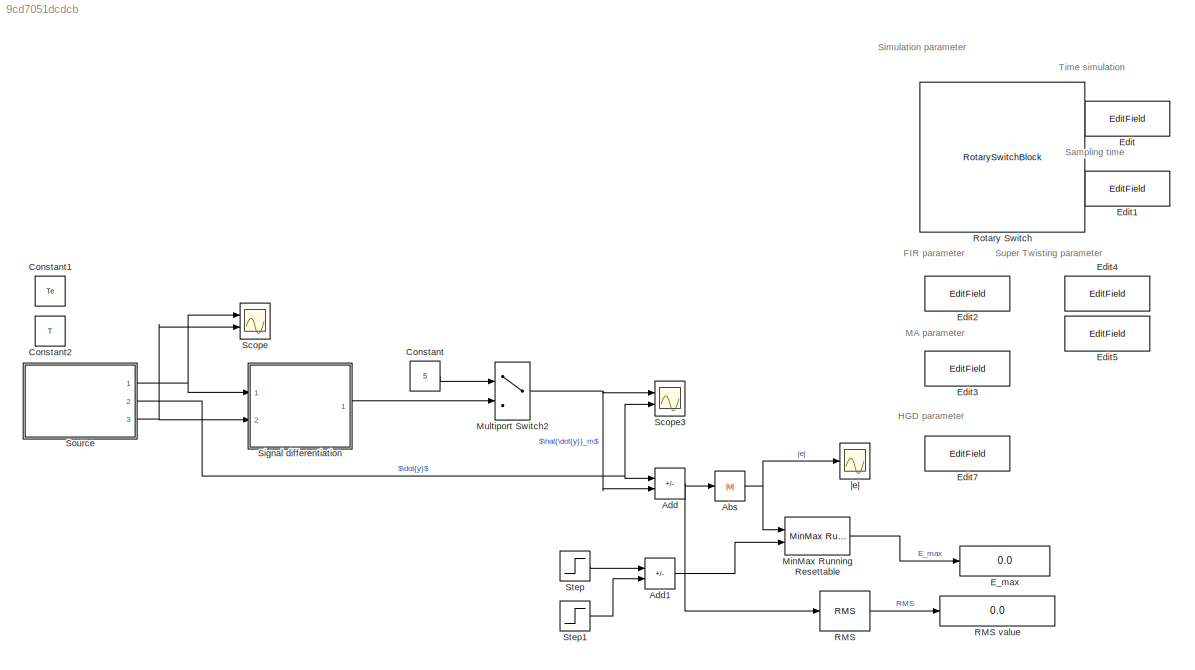
MODEL slx_9cd7051dcdcb
KIND model
CONFIG AbsTol = auto
CONFIG EnableMultiTasking = off
CONFIG FixedStep = auto
CONFIG MaxStep = auto
CONFIG MinStep = auto
CONFIG RelTol = 1e-3
CONFIG SampleTimeConstraint = Unconstrained
CONFIG SolverName = VariableStepAuto
CONFIG StartTime = 0.0
CONFIG StopTime = T
BLOCK [Abs] Abs
  SaturateOnIntegerOverflow = off
  ZeroCross = off
BLOCK [Sum] Add
  IconShape = rectangular
  Inputs = +-
  Ports = [2, 1]
BLOCK [Sum] Add1
  IconShape = rectangular
  Inputs = +-
  Ports = [2, 1]
BLOCK [Constant] Constant
  Value = 5
BLOCK [Constant] Constant1
  Value = Te
BLOCK [Constant] Constant2
  Value = T
BLOCK [Display] E_max
  Decimation = 1
  Ports = [1]
BLOCK [EditField] Edit
  Alignment = Left
  ShowInitialText = on
BLOCK [EditField] Edit1
  Alignment = Left
  ShowInitialText = on
BLOCK [EditField] Edit2
  Alignment = Left
  ShowInitialText = on
BLOCK [EditField] Edit3
  Alignment = Left
  ShowInitialText = on
BLOCK [EditField] Edit4
  Alignment = Left
  ShowInitialText = on
BLOCK [EditField] Edit5
  Alignment = Left
  ShowInitialText = on
BLOCK [EditField] Edit7
  Alignment = Left
  ShowInitialText = on
BLOCK [Reference] MinMax Running Resettable  REF=simulink/Math
Operations/MinMax
Running
Resettable
  Ports = [2, 1]
  SourceBlock = simulink/Math\nOperations/MinMax\nRunning\nResettable
  SourceProductBaseCode = SL
  SourceType = MinMax Running Resettable
BLOCK [MultiPortSwitch] Multiport Switch2
  InputSameDT = off
  Inputs = 1
  Ports = [2, 1]
  SaturateOnIntegerOverflow = off
BLOCK [Reference] RMS  REF=powerlib_meascontrol/Measurements/RMS
  Ports = [1, 1]
  SourceBlock = powerlib_meascontrol/Measurements/RMS
  SourceProductBaseCode = PS
  SourceType = RMS
BLOCK [Display] RMS value
  Decimation = 1
  Format = long
  Ports = [1]
BLOCK [RotarySwitchBlock] Rotary Switch
BLOCK [Scope] Scope
  Floating = off
  NumInputPorts = 2
  Ports = [2]
  ScopeSpecificationString = Simulink.scopes.TimeScopeBlockCfg('CurrentConfiguration', extmgr.ConfigurationSet(extmgr.Configuration('Core','General UI',true),extmgr.Configuration('Core','Source UI',true),extmgr.Configuration('Sources','WiredSimulink',true,'SampleTime','Te'),extmgr.Configuration('Visuals','Time Domain',true,'SerializedDisplays',{struct('MinYLimReal','-6.25087','MaxYLimReal','6.2501','YLabelReal','','MinYLimMag...<+1428ch>
BLOCK [Scope] Scope3
  Floating = off
  NumInputPorts = 2
  Ports = [2]
  ScopeSpecificationString = Simulink.scopes.TimeScopeBlockCfg('CurrentConfiguration', extmgr.ConfigurationSet(extmgr.Configuration('Core','General UI',true,'FigureColor',[1 1 1]),extmgr.Configuration('Core','Source UI',true),extmgr.Configuration('Sources','WiredSimulink',true,'DataLoggingVariableName','ScopeData1','SampleTime','Te'),extmgr.Configuration('Visuals','Time Domain',true,'SerializedDisplays',{struct('MinYLimReal',...<+1788ch>
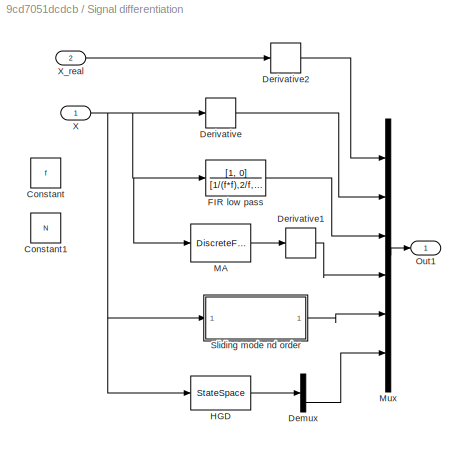
BLOCK [SubSystem] Signal differentiation
  Ports = [2, 1]
  RequestExecContextInheritance = off
BLOCK [Constant] Signal differentiation/Constant
  Value = f
BLOCK [Constant] Signal differentiation/Constant1
  Value = N
BLOCK [Demux] Signal differentiation/Demux
  Outputs = 3
  Ports = [1, 3]
BLOCK [Derivative] Signal differentiation/Derivative
  CoefficientInTFapproximation = 0
BLOCK [Derivative] Signal differentiation/Derivative1
  CoefficientInTFapproximation = 0
BLOCK [Derivative] Signal differentiation/Derivative2
  CoefficientInTFapproximation = 0
BLOCK [TransferFcn] Signal differentiation/FIR low pass
  Denominator = [1/(f*f),2/f, 1]
  Numerator = [1, 0]
BLOCK [StateSpace] Signal differentiation/HGD
  A = sys_obs.A
  B = sys_obs.B
  C = sys_obs.C
  D = sys_obs.D
  InitialCondition = 0
  Ports = [1, 1]
BLOCK [DiscreteFir] Signal differentiation/MA
  Coefficients = 1/floor(N)*ones(1,floor(N))
  InputPortMap = u0
  OutputPortMap = o0
  Ports = [1, 1]
  SampleTime = Te
BLOCK [Mux] Signal differentiation/Mux
  DisplayOption = bar
  Inputs = 6
  Ports = [6, 1]
BLOCK [Outport] Signal differentiation/Out1
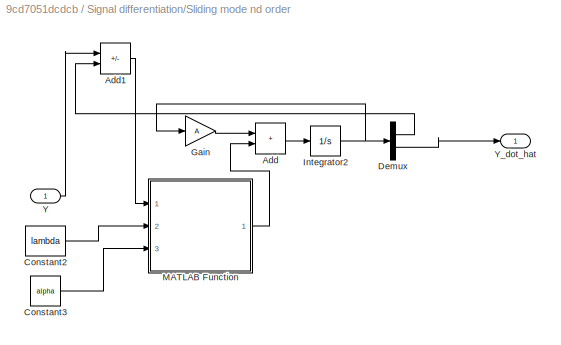
BLOCK [SubSystem] Signal differentiation/Sliding mode nd order
  Ports = [1, 1]
  RequestExecContextInheritance = off
BLOCK [Sum] Signal differentiation/Sliding mode nd order/Add
  IconShape = rectangular
  Ports = [2, 1]
BLOCK [Sum] Signal differentiation/Sliding mode nd order/Add1
  IconShape = rectangular
  Inputs = +-
  Ports = [2, 1]
BLOCK [Constant] Signal differentiation/Sliding mode nd order/Constant2
  Value = lambda
BLOCK [Constant] Signal differentiation/Sliding mode nd order/Constant3
  Value = alpha
BLOCK [Demux] Signal differentiation/Sliding mode nd order/Demux
  Outputs = 2
  Ports = [1, 2]
BLOCK [Gain] Signal differentiation/Sliding mode nd order/Gain
  Gain = A
  Multiplication = Matrix(K*u)
BLOCK [Integrator] Signal differentiation/Sliding mode nd order/Integrator2
  Ports = [1, 1]
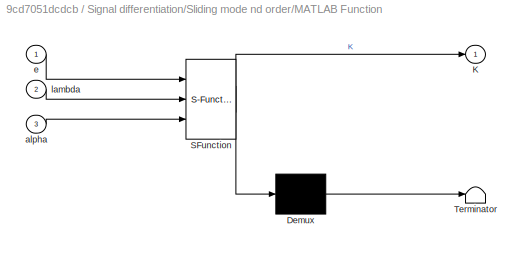
BLOCK [SubSystem] Signal differentiation/Sliding mode nd order/MATLAB Function
  ErrorFcn = Stateflow.Translate.translate
  PermitHierarchicalResolution = ExplicitOnly
  Ports = [3, 1]
  RequestExecContextInheritance = off
  SFBlockType = MATLAB Function
  TreatAsAtomicUnit = on
BLOCK [Demux] Signal differentiation/Sliding mode nd order/MATLAB Function/ Demux 
  Outputs = 1
  Ports = [1, 1]
BLOCK [S-Function] Signal differentiation/Sliding mode nd order/MATLAB Function/ SFunction 
  EnableBusSupport = on
  FunctionName = sf_sfun
  PortCounts = [3 2]
  Ports = [3, 2]
  SFcnIsStateOwnerBlock = off
  SFunctionDeploymentMode = off
  Tag = Stateflow S-Function 2
BLOCK [Terminator] Signal differentiation/Sliding mode nd order/MATLAB Function/ Terminator 
BLOCK [Outport] Signal differentiation/Sliding mode nd order/MATLAB Function/K
BLOCK [Inport] Signal differentiation/Sliding mode nd order/MATLAB Function/alpha
  Port = 3
BLOCK [Inport] Signal differentiation/Sliding mode nd order/MATLAB Function/e
BLOCK [Inport] Signal differentiation/Sliding mode nd order/MATLAB Function/lambda
  Port = 2
BLOCK [Inport] Signal differentiation/Sliding mode nd order/Y
BLOCK [Outport] Signal differentiation/Sliding mode nd order/Y_dot_hat
BLOCK [Inport] Signal differentiation/X
BLOCK [Inport] Signal differentiation/X_real
  Port = 2
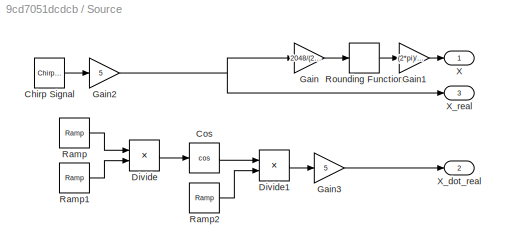
BLOCK [SubSystem] Source
  Ports = [0, 3]
  RequestExecContextInheritance = off
BLOCK [Reference] Source/Chirp Signal  REF=simulink/Sources/Chirp Signal
  Ports = [0, 1]
  SourceBlock = simulink/Sources/Chirp Signal
  SourceProductBaseCode = SL
  SourceType = chirp
BLOCK [Trigonometry] Source/Cos
  Operator = cos
  Ports = [1, 1]
BLOCK [Product] Source/Divide
  Inputs = **
  Ports = [2, 1]
BLOCK [Product] Source/Divide1
  Inputs = **
  Ports = [2, 1]
BLOCK [Gain] Source/Gain
  Gain = 2048/(2*pi)
BLOCK [Gain] Source/Gain1
  Gain = (2*pi)/2048
BLOCK [Gain] Source/Gain2
  Gain = 5
BLOCK [Gain] Source/Gain3
  Gain = 5
BLOCK [Reference] Source/Ramp  REF=simulink/Sources/Ramp
  Ports = [0, 1]
  SourceBlock = simulink/Sources/Ramp
  SourceProductBaseCode = SL
  SourceType = Ramp
BLOCK [Reference] Source/Ramp1  REF=simulink/Sources/Ramp
  Ports = [0, 1]
  SourceBlock = simulink/Sources/Ramp
  SourceProductBaseCode = SL
  SourceType = Ramp
BLOCK [Reference] Source/Ramp2  REF=simulink/Sources/Ramp
  Ports = [0, 1]
  SourceBlock = simulink/Sources/Ramp
  SourceProductBaseCode = SL
  SourceType = Ramp
BLOCK [Rounding] Source/Rounding Function
BLOCK [Outport] Source/X
BLOCK [Outport] Source/X_dot_real
  Port = 2
BLOCK [Outport] Source/X_real
  Port = 3
BLOCK [Step] Step
  SampleTime = 0
  Time = 0
BLOCK [Step] Step1
  SampleTime = 0
  Time = 0.5
BLOCK [Scope] |e|
  Floating = off
  NumInputPorts = 1
  Ports = [1]
  ScopeSpecificationString = Simulink.scopes.TimeScopeBlockCfg('CurrentConfiguration', extmgr.ConfigurationSet(extmgr.Configuration('Core','General UI',true,'FigureColor',[1 1 1]),extmgr.Configuration('Core','Source UI',true),extmgr.Configuration('Sources','WiredSimulink',true,'DataLoggingVariableName','ScopeData1','SampleTime','Te'),extmgr.Configuration('Visuals','Time Domain',true,'SerializedDisplays',{struct('MinYLimReal',...<+1767ch>
ANNOTATION (root): Sampling time
ANNOTATION (root): Simulation parameter
ANNOTATION (root): Time simulation
ANNOTATION (root): FIR parameter
ANNOTATION (root): HGD parameter
ANNOTATION (root): MA parameter
ANNOTATION (root): Super Twisting parameter
NET Abs:1 -> MinMax Running Resettable:1, |e|:1
LINE Add1:1 -> MinMax Running Resettable:2
NET Add:1 -> Abs:1, RMS:1
LINE Constant:1 -> Multiport Switch2:1
LINE MinMax Running Resettable:1 -> E_max:1
NET Multiport Switch2:1 -> Add:2, Scope3:1
LINE RMS:1 -> RMS value:1
LINE Signal differentiation/Demux:3 -> Signal differentiation/Mux:6
LINE Signal differentiation/Derivative1:1 -> Signal differentiation/Mux:4
LINE Signal differentiation/Derivative2:1 -> Signal differentiation/Mux:1
LINE Signal differentiation/Derivative:1 -> Signal differentiation/Mux:2
LINE Signal differentiation/FIR low pass:1 -> Signal differentiation/Mux:3
LINE Signal differentiation/HGD:1 -> Signal differentiation/Demux:1
LINE Signal differentiation/MA:1 -> Signal differentiation/Derivative1:1
LINE Signal differentiation/Mux:1 -> Signal differentiation/Out1:1
LINE Signal differentiation/Sliding mode nd order/Add1:1 -> Signal differentiation/Sliding mode nd order/MATLAB Function:1
LINE Signal differentiation/Sliding mode nd order/Add:1 -> Signal differentiation/Sliding mode nd order/Integrator2:1
LINE Signal differentiation/Sliding mode nd order/Constant2:1 -> Signal differentiation/Sliding mode nd order/MATLAB Function:2
LINE Signal differentiation/Sliding mode nd order/Constant3:1 -> Signal differentiation/Sliding mode nd order/MATLAB Function:3
LINE Signal differentiation/Sliding mode nd order/Demux:1 -> Signal differentiation/Sliding mode nd order/Add1:2
LINE Signal differentiation/Sliding mode nd order/Demux:2 -> Signal differentiation/Sliding mode nd order/Y_dot_hat:1
LINE Signal differentiation/Sliding mode nd order/Gain:1 -> Signal differentiation/Sliding mode nd order/Add:1
NET Signal differentiation/Sliding mode nd order/Integrator2:1 -> Signal differentiation/Sliding mode nd order/Demux:1, Signal differentiation/Sliding mode nd order/Gain:1
LINE Signal differentiation/Sliding mode nd order/MATLAB Function:1 -> Signal differentiation/Sliding mode nd order/Add:2
LINE Signal differentiation/Sliding mode nd order/Y:1 -> Signal differentiation/Sliding mode nd order/Add1:1
LINE Signal differentiation/Sliding mode nd order:1 -> Signal differentiation/Mux:5
NET Signal differentiation/X:1 -> Signal differentiation/Derivative:1, Signal differentiation/FIR low pass:1, Signal differentiation/HGD:1, Signal differentiation/MA:1, Signal differentiation/Sliding mode nd order:1
LINE Signal differentiation/X_real:1 -> Signal differentiation/Derivative2:1
LINE Signal differentiation:1 -> Multiport Switch2:2
LINE Source/Chirp Signal:1 -> Source/Gain2:1
LINE Source/Cos:1 -> Source/Divide1:1
LINE Source/Divide1:1 -> Source/Gain3:1
LINE Source/Divide:1 -> Source/Cos:1
LINE Source/Gain1:1 -> Source/X:1
NET Source/Gain2:1 -> Source/Gain:1, Source/X_real:1
LINE Source/Gain3:1 -> Source/X_dot_real:1
LINE Source/Gain:1 -> Source/Rounding Function:1
LINE Source/Ramp1:1 -> Source/Divide:2
LINE Source/Ramp2:1 -> Source/Divide1:2
LINE Source/Ramp:1 -> Source/Divide:1
LINE Source/Rounding Function:1 -> Source/Gain1:1
NET Source:1 -> Scope:1, Signal differentiation:1
NET Source:2 -> Add:1, Scope3:2
NET Source:3 -> Scope:2, Signal differentiation:2
LINE Step1:1 -> Add1:2
LINE Step:1 -> Add1:1
note: NET lines group one-source signal fan-out (src -> all destinations, sorted); 1:1 wires keep LINE
CHART Signal differentiation/Sliding mode nd order/MATLAB Function states=1 transitions=1
  STATE_LABEL 'eML_blk_kernel()'
  STATE_LABEL 'SCRIPT:\nfunction K  = fcn(e, lambda, alpha)\n    K = [lambda*abs(e)^(1/2)*sign(e); alpha*sign(e)];\nend\n\n'
CHART  states=0 transitions=0
